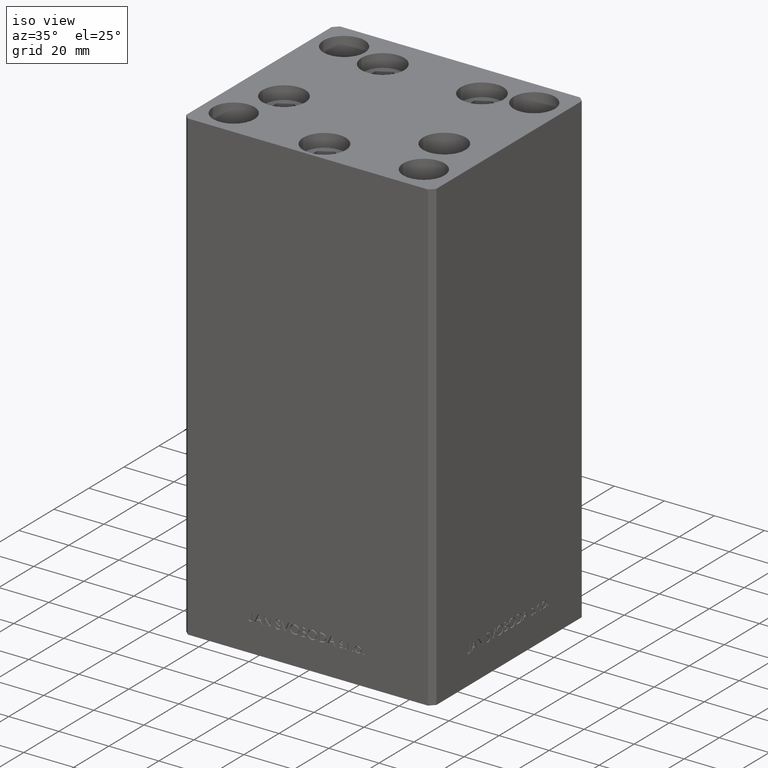
[diagram: clean part render]
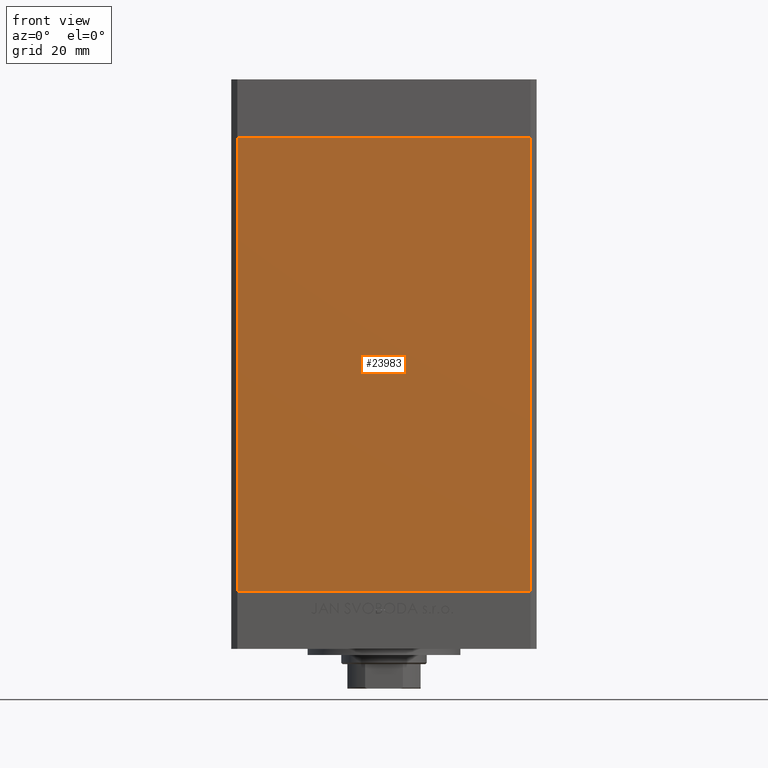
[diagram: tour spotlight — one face highlighted and labeled with its STEP entity id]
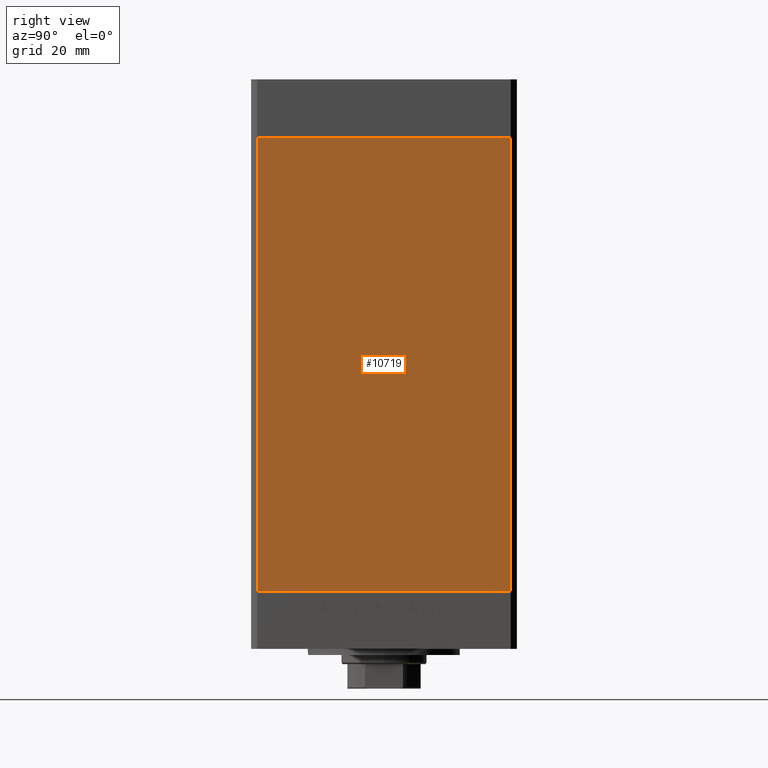
[diagram: tour spotlight — one face highlighted and labeled with its STEP entity id]
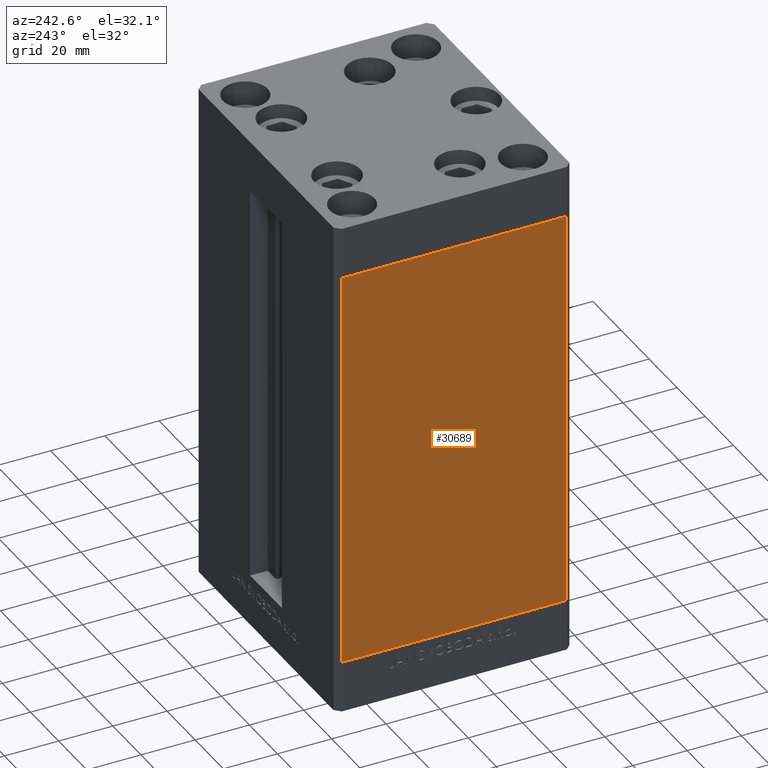
[diagram: tour spotlight — one face highlighted and labeled with its STEP entity id]
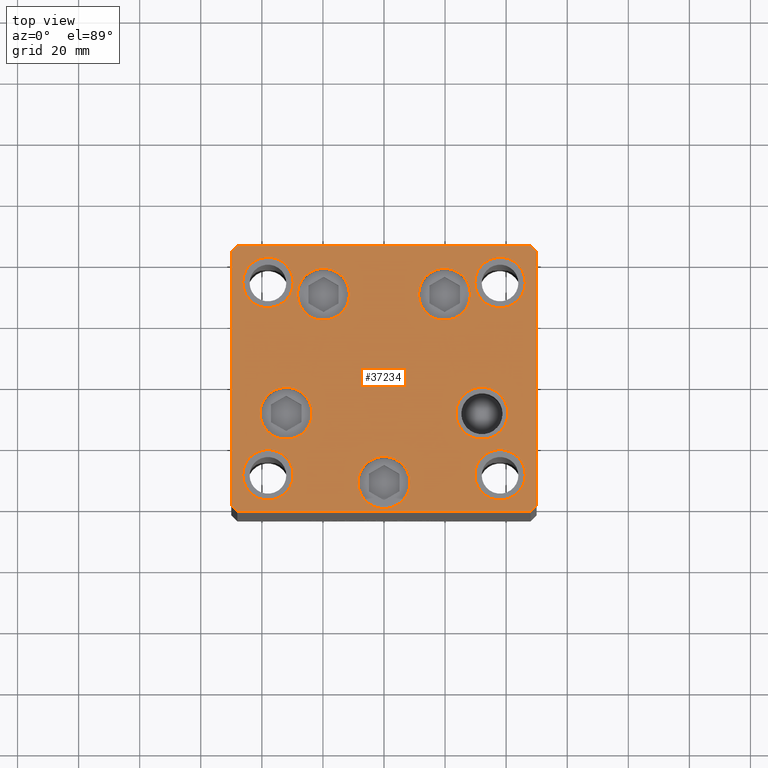
[diagram: tour spotlight — one face highlighted and labeled with its STEP entity id]
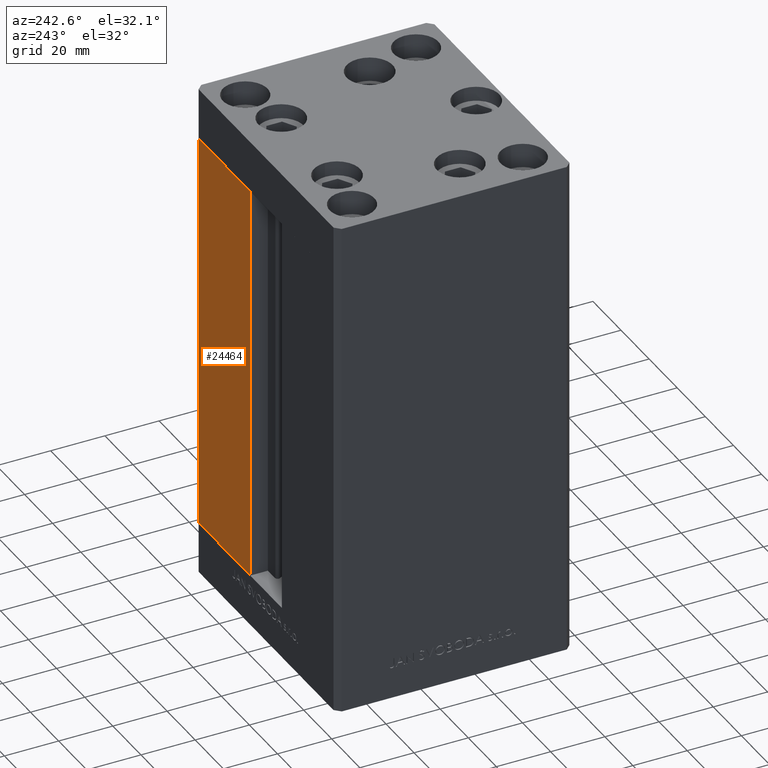
[diagram: tour spotlight — one face highlighted and labeled with its STEP entity id]
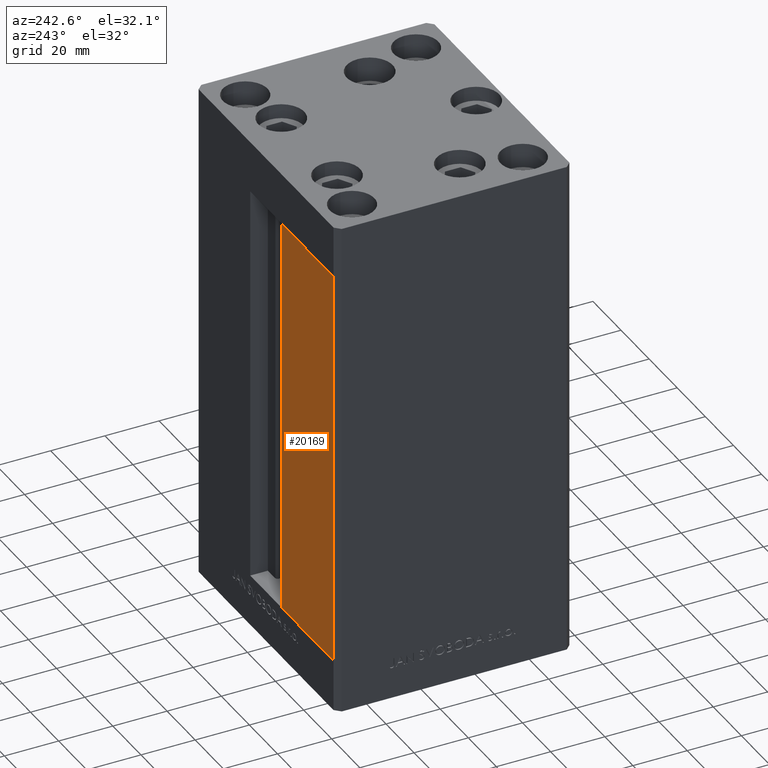
[diagram: tour spotlight — one face highlighted and labeled with its STEP entity id]
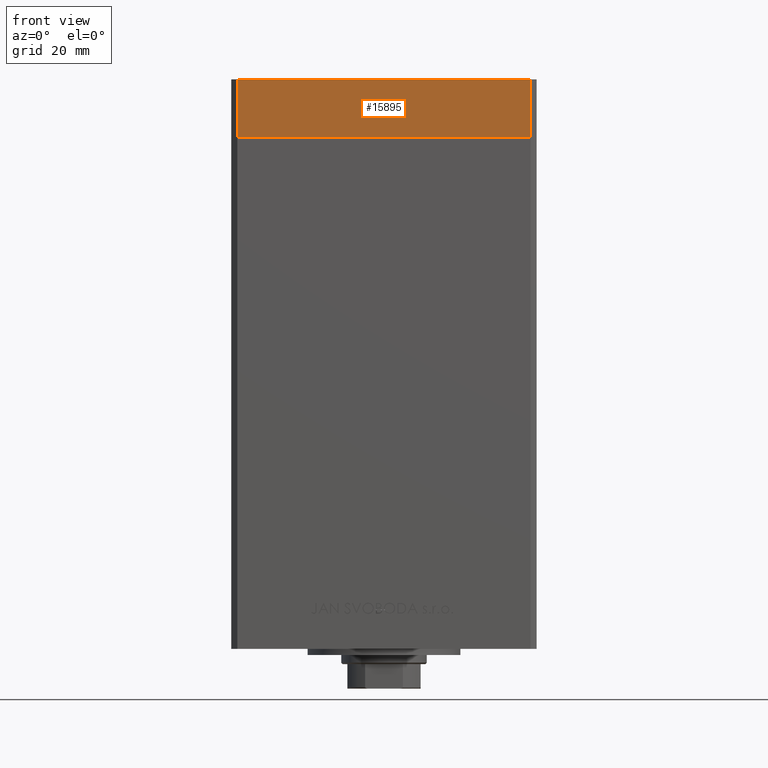
[diagram: tour spotlight — one face highlighted and labeled with its STEP entity id]
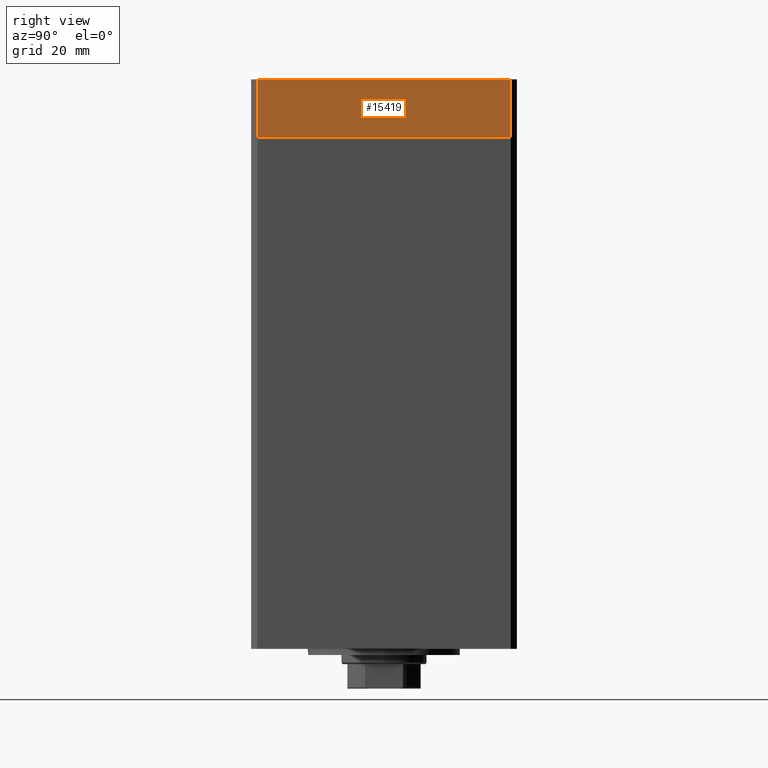
[diagram: tour spotlight — one face highlighted and labeled with its STEP entity id]
A machine part: a face-by-face anatomy tour. The part has 1160 B-rep faces; the first image is the clean iso view, then the 8 largest visible faces are spotlighted one at a time (largest first), each with its STEP entity span.

Face 1 — front view, entity #23983. In plain terms, the highlighted planar face has unit normal (0, 1, 0).
Definition (entity closure, byte-faithful):
#529 = ORIENTED_EDGE ( 'NONE', *, *, #44042, .T. ) ;
#829 = DIRECTION ( 'NONE',  ( -0.000000000000000000, -0.000000000000000000, -1.000000000000000000 ) ) ;
#3262 = VERTEX_POINT ( 'NONE', #30499 ) ;
#3427 = LINE ( 'NONE', #37718, #45842 ) ;
#4276 = VERTEX_POINT ( 'NONE', #11997 ) ;
#5129 = EDGE_CURVE ( 'NONE', #4276, #3262, #26925, .T. ) ;
#8267 = DIRECTION ( 'NONE',  ( 1.000000000000000000, 0.000000000000000000, 0.000000000000000000 ) ) ;
#8615 = VECTOR ( 'NONE', #46596, 1000.000000000000000 ) ;
#9064 = LINE ( 'NONE', #39380, #8615 ) ;
#11513 = ORIENTED_EDGE ( 'NONE', *, *, #42528, .F. ) ;
#11997 = CARTESIAN_POINT ( 'NONE',  ( -47.99999999999998579, -43.50000000000000000, 148.5000000000000000 ) ) ;
#15092 = DIRECTION ( 'NONE',  ( -0.000000000000000000, -0.000000000000000000, -1.000000000000000000 ) ) ;
#15114 = VERTEX_POINT ( 'NONE', #47984 ) ;
#23983 = ADVANCED_FACE ( 'NONE', ( #25010 ), #47390, .F. ) ;
#24705 = ORIENTED_EDGE ( 'NONE', *, *, #5129, .T. ) ;
#25010 = FACE_OUTER_BOUND ( 'NONE', #35480, .T. ) ;
#26925 = LINE ( 'NONE', #34884, #41299 ) ;
#28021 = CARTESIAN_POINT ( 'NONE',  ( -47.99999999999998579, -43.50000000000000000, 148.5000000000000000 ) ) ;
#29408 = AXIS2_PLACEMENT_3D ( 'NONE', #28021, #39684, #43904 ) ;
#30499 = CARTESIAN_POINT ( 'NONE',  ( -47.99999999999998579, -43.50000000000000000, 0.000000000000000000 ) ) ;
#31258 = CARTESIAN_POINT ( 'NONE',  ( 47.99999999999998579, -43.50000000000000000, 148.5000000000000000 ) ) ;
#34393 = VERTEX_POINT ( 'NONE', #31258 ) ;
#34884 = CARTESIAN_POINT ( 'NONE',  ( -47.99999999999998579, -43.50000000000000000, 148.5000000000000000 ) ) ;
#35480 = EDGE_LOOP ( 'NONE', ( #529, #11513, #44201, #24705 ) ) ;
#37718 = CARTESIAN_POINT ( 'NONE',  ( 47.99999999999998579, -43.50000000000000000, 148.5000000000000000 ) ) ;
#38350 = LINE ( 'NONE', #42312, #49179 ) ;
#39380 = CARTESIAN_POINT ( 'NONE',  ( -47.99999999999998579, -43.50000000000000000, 0.000000000000000000 ) ) ;
#39684 = DIRECTION ( 'NONE',  ( 0.000000000000000000, 1.000000000000000000, 0.000000000000000000 ) ) ;
#41299 = VECTOR ( 'NONE', #829, 1000.000000000000000 ) ;
#42312 = CARTESIAN_POINT ( 'NONE',  ( -47.99999999999998579, -43.50000000000000000, 148.5000000000000000 ) ) ;
#42528 = EDGE_CURVE ( 'NONE', #34393, #15114, #3427, .T. ) ;
#43904 = DIRECTION ( 'NONE',  ( 0.000000000000000000, -0.000000000000000000, 1.000000000000000000 ) ) ;
#44042 = EDGE_CURVE ( 'NONE', #3262, #15114, #9064, .T. ) ;
#44201 = ORIENTED_EDGE ( 'NONE', *, *, #46123, .F. ) ;
#45842 = VECTOR ( 'NONE', #15092, 1000.000000000000000 ) ;
#46123 = EDGE_CURVE ( 'NONE', #4276, #34393, #38350, .T. ) ;
#46596 = DIRECTION ( 'NONE',  ( 1.000000000000000000, 0.000000000000000000, 0.000000000000000000 ) ) ;
#47390 = PLANE ( 'NONE',  #29408 ) ;
#47984 = CARTESIAN_POINT ( 'NONE',  ( 47.99999999999998579, -43.50000000000000000, 0.000000000000000000 ) ) ;
#49179 = VECTOR ( 'NONE', #8267, 1000.000000000000000 ) ;

Face 2 — right view, entity #10719. In plain terms, the highlighted planar face has unit normal (1, -0, 0).
Definition (entity closure, byte-faithful):
#2509 = CARTESIAN_POINT ( 'NONE',  ( 49.99999999999998579, -41.49999999999999289, 0.000000000000000000 ) ) ;
#3265 = VECTOR ( 'NONE', #44586, 1000.000000000000000 ) ;
#4296 = DIRECTION ( 'NONE',  ( 1.000000000000000000, -3.344045254895050480E-16, 0.000000000000000000 ) ) ;
#7478 = CARTESIAN_POINT ( 'NONE',  ( 49.99999999999998579, -41.49999999999999289, 148.5000000000000000 ) ) ;
#8017 = PLANE ( 'NONE',  #16928 ) ;
#8081 = EDGE_LOOP ( 'NONE', ( #22145, #39092, #16872, #41247 ) ) ;
#10155 = EDGE_CURVE ( 'NONE', #41208, #15154, #14594, .T. ) ;
#10324 = CARTESIAN_POINT ( 'NONE',  ( 50.00000000000001421, 41.49999999999999289, 148.5000000000000000 ) ) ;
#10719 = ADVANCED_FACE ( 'NONE', ( #11739 ), #8017, .T. ) ;
#11739 = FACE_OUTER_BOUND ( 'NONE', #8081, .T. ) ;
#11990 = DIRECTION ( 'NONE',  ( 3.344045254895050480E-16, 1.000000000000000000, 0.000000000000000000 ) ) ;
#12248 = CARTESIAN_POINT ( 'NONE',  ( 49.99999999999998579, -41.49999999999999289, 148.5000000000000000 ) ) ;
#14594 = LINE ( 'NONE', #18092, #29578 ) ;
#15154 = VERTEX_POINT ( 'NONE', #2509 ) ;
#16872 = ORIENTED_EDGE ( 'NONE', *, *, #33438, .T. ) ;
#16928 = AXIS2_PLACEMENT_3D ( 'NONE', #38349, #4296, #11990 ) ;
#17042 = EDGE_CURVE ( 'NONE', #18996, #15154, #32129, .T. ) ;
#18092 = CARTESIAN_POINT ( 'NONE',  ( 50.00000000000001421, 41.49999999999999289, 0.000000000000000000 ) ) ;
#18996 = VERTEX_POINT ( 'NONE', #7478 ) ;
#22145 = ORIENTED_EDGE ( 'NONE', *, *, #10155, .F. ) ;
#23634 = VECTOR ( 'NONE', #35859, 1000.000000000000000 ) ;
#25227 = EDGE_CURVE ( 'NONE', #45515, #41208, #41085, .T. ) ;
#26435 = CARTESIAN_POINT ( 'NONE',  ( 50.00000000000001421, 41.49999999999999289, 148.5000000000000000 ) ) ;
#29229 = CARTESIAN_POINT ( 'NONE',  ( 50.00000000000001421, 41.49999999999999289, 0.000000000000000000 ) ) ;
#29578 = VECTOR ( 'NONE', #48407, 1000.000000000000000 ) ;
#32129 = LINE ( 'NONE', #12248, #23634 ) ;
#33320 = LINE ( 'NONE', #41241, #43847 ) ;
#33438 = EDGE_CURVE ( 'NONE', #45515, #18996, #33320, .T. ) ;
#35859 = DIRECTION ( 'NONE',  ( -0.000000000000000000, -0.000000000000000000, -1.000000000000000000 ) ) ;
#37534 = DIRECTION ( 'NONE',  ( -3.344045254895050973E-16, -1.000000000000000000, 0.000000000000000000 ) ) ;
#38349 = CARTESIAN_POINT ( 'NONE',  ( 50.00000000000001421, 41.49999999999999289, 148.5000000000000000 ) ) ;
#39092 = ORIENTED_EDGE ( 'NONE', *, *, #25227, .F. ) ;
#41085 = LINE ( 'NONE', #26435, #3265 ) ;
#41208 = VERTEX_POINT ( 'NONE', #29229 ) ;
#41241 = CARTESIAN_POINT ( 'NONE',  ( 50.00000000000001421, 41.49999999999999289, 148.5000000000000000 ) ) ;
#41247 = ORIENTED_EDGE ( 'NONE', *, *, #17042, .T. ) ;
#43847 = VECTOR ( 'NONE', #37534, 1000.000000000000000 ) ;
#44586 = DIRECTION ( 'NONE',  ( -0.000000000000000000, -0.000000000000000000, -1.000000000000000000 ) ) ;
#45515 = VERTEX_POINT ( 'NONE', #10324 ) ;
#48407 = DIRECTION ( 'NONE',  ( -3.344045254895050973E-16, -1.000000000000000000, 0.000000000000000000 ) ) ;

Face 3 — auxiliary view, entity #30689. In plain terms, the highlighted planar face has unit normal (1, 0, 0).
Definition (entity closure, byte-faithful):
#479 = VERTEX_POINT ( 'NONE', #11468 ) ;
#728 = CARTESIAN_POINT ( 'NONE',  ( -50.00000000000001421, 41.49999999999999289, 148.5000000000000000 ) ) ;
#1010 = CARTESIAN_POINT ( 'NONE',  ( -49.99999999999998579, -41.49999999999999289, 148.5000000000000000 ) ) ;
#1579 = ORIENTED_EDGE ( 'NONE', *, *, #39541, .T. ) ;
#5050 = ORIENTED_EDGE ( 'NONE', *, *, #20758, .F. ) ;
#5432 = EDGE_CURVE ( 'NONE', #48952, #35079, #42010, .T. ) ;
#6164 = EDGE_CURVE ( 'NONE', #479, #35079, #37069, .T. ) ;
#7438 = LINE ( 'NONE', #18140, #22958 ) ;
#7970 = DIRECTION ( 'NONE',  ( -0.000000000000000000, -0.000000000000000000, -1.000000000000000000 ) ) ;
#9146 = VECTOR ( 'NONE', #24322, 1000.000000000000000 ) ;
#9163 = CARTESIAN_POINT ( 'NONE',  ( -50.00000000000001421, 41.49999999999999289, 148.5000000000000000 ) ) ;
#11468 = CARTESIAN_POINT ( 'NONE',  ( -50.00000000000001421, 41.49999999999999289, 0.000000000000000000 ) ) ;
#18140 = CARTESIAN_POINT ( 'NONE',  ( -50.00000000000001421, 41.49999999999999289, 148.5000000000000000 ) ) ;
#20758 = EDGE_CURVE ( 'NONE', #21473, #48952, #7438, .T. ) ;
#21473 = VERTEX_POINT ( 'NONE', #728 ) ;
#22958 = VECTOR ( 'NONE', #48456, 1000.000000000000000 ) ;
#23868 = CARTESIAN_POINT ( 'NONE',  ( -49.99999999999998579, -41.49999999999999289, 148.5000000000000000 ) ) ;
#24322 = DIRECTION ( 'NONE',  ( -0.000000000000000000, -0.000000000000000000, -1.000000000000000000 ) ) ;
#25445 = VECTOR ( 'NONE', #7970, 1000.000000000000000 ) ;
#30498 = EDGE_LOOP ( 'NONE', ( #45951, #34334, #5050, #1579 ) ) ;
#30689 = ADVANCED_FACE ( 'NONE', ( #42285 ), #43689, .F. ) ;
#30764 = CARTESIAN_POINT ( 'NONE',  ( -49.99999999999998579, -41.49999999999999289, 0.000000000000000000 ) ) ;
#31778 = DIRECTION ( 'NONE',  ( 1.000000000000000000, 3.344045254895050480E-16, -0.000000000000000000 ) ) ;
#34334 = ORIENTED_EDGE ( 'NONE', *, *, #5432, .F. ) ;
#35059 = AXIS2_PLACEMENT_3D ( 'NONE', #42031, #31778, #39713 ) ;
#35079 = VERTEX_POINT ( 'NONE', #30764 ) ;
#37069 = LINE ( 'NONE', #37318, #42165 ) ;
#37318 = CARTESIAN_POINT ( 'NONE',  ( -50.00000000000001421, 41.49999999999999289, 0.000000000000000000 ) ) ;
#39541 = EDGE_CURVE ( 'NONE', #21473, #479, #43215, .T. ) ;
#39713 = DIRECTION ( 'NONE',  ( -3.344045254895050480E-16, 1.000000000000000000, 0.000000000000000000 ) ) ;
#41526 = DIRECTION ( 'NONE',  ( 3.344045254895050973E-16, -1.000000000000000000, 0.000000000000000000 ) ) ;
#42010 = LINE ( 'NONE', #23868, #25445 ) ;
#42031 = CARTESIAN_POINT ( 'NONE',  ( -50.00000000000001421, 41.49999999999999289, 148.5000000000000000 ) ) ;
#42165 = VECTOR ( 'NONE', #41526, 1000.000000000000000 ) ;
#42285 = FACE_OUTER_BOUND ( 'NONE', #30498, .T. ) ;
#43215 = LINE ( 'NONE', #9163, #9146 ) ;
#43689 = PLANE ( 'NONE',  #35059 ) ;
#45951 = ORIENTED_EDGE ( 'NONE', *, *, #6164, .T. ) ;
#48456 = DIRECTION ( 'NONE',  ( 3.344045254895050973E-16, -1.000000000000000000, 0.000000000000000000 ) ) ;
#48952 = VERTEX_POINT ( 'NONE', #1010 ) ;

Face 4 — top view, entity #37234. In plain terms, the highlighted planar face has unit normal (0, 0, 1).
Definition (entity closure, byte-faithful):
#8 = VERTEX_POINT ( 'NONE', #1627 ) ;
#145 = VERTEX_POINT ( 'NONE', #6319 ) ;
#338 = DIRECTION ( 'NONE',  ( 0.7071067811865474617, -0.7071067811865474617, 0.000000000000000000 ) ) ;
#450 = VERTEX_POINT ( 'NONE', #2787 ) ;
#486 = DIRECTION ( 'NONE',  ( 0.000000000000000000, 0.000000000000000000, 1.000000000000000000 ) ) ;
#1210 = CARTESIAN_POINT ( 'NONE',  ( -46.24999999999999289, -31.50000000000000000, 0.000000000000000000 ) ) ;
#1566 = AXIS2_PLACEMENT_3D ( 'NONE', #42234, #8185, #23348 ) ;
#1627 = CARTESIAN_POINT ( 'NONE',  ( -47.99999999999999289, -43.50000000000001421, 0.000000000000000000 ) ) ;
#1640 = VERTEX_POINT ( 'NONE', #40011 ) ;
#2377 = DIRECTION ( 'NONE',  ( 0.000000000000000000, -0.000000000000000000, -1.000000000000000000 ) ) ;
#2577 = CIRCLE ( 'NONE', #27986, 8.250000000000000000 ) ;
#2624 = CARTESIAN_POINT ( 'NONE',  ( 28.32068048781373193, 27.62500000000000000, 0.000000000000000000 ) ) ;
#2760 = CIRCLE ( 'NONE', #30559, 8.250000000000000000 ) ;
#2786 = EDGE_CURVE ( 'NONE', #32083, #30804, #31751, .T. ) ;
#2787 = CARTESIAN_POINT ( 'NONE',  ( -8.499999999999996447, -34.00000000000000000, 0.000000000000000000 ) ) ;
#3272 = EDGE_CURVE ( 'NONE', #30804, #32083, #5560, .T. ) ;
#3275 = FACE_OUTER_BOUND ( 'NONE', #21877, .T. ) ;
#3373 = DIRECTION ( 'NONE',  ( -1.003213576468515193E-15, 1.000000000000000000, 0.000000000000000000 ) ) ;
#3391 = VERTEX_POINT ( 'NONE', #5125 ) ;
#3745 = DIRECTION ( 'NONE',  ( 1.000000000000000000, 0.000000000000000000, 0.000000000000000000 ) ) ;
#3929 = LINE ( 'NONE', #31031, #35561 ) ;
#4224 = DIRECTION ( 'NONE',  ( 1.000000000000000000, 0.000000000000000000, 0.000000000000000000 ) ) ;
#4298 = EDGE_LOOP ( 'NONE', ( #34766, #44834 ) ) ;
#4312 = CARTESIAN_POINT ( 'NONE',  ( 40.55550741379014568, -11.33333333333332860, 0.000000000000000000 ) ) ;
#4351 = DIRECTION ( 'NONE',  ( 1.000000000000000000, 0.000000000000000000, 0.000000000000000000 ) ) ;
#4472 = CARTESIAN_POINT ( 'NONE',  ( -19.82068048781373903, 27.62499999999999645, 0.000000000000000000 ) ) ;
#4690 = VERTEX_POINT ( 'NONE', #24232 ) ;
#4743 = VERTEX_POINT ( 'NONE', #44333 ) ;
#5125 = CARTESIAN_POINT ( 'NONE',  ( 29.74999999999999645, 31.49999999999999289, 0.000000000000000000 ) ) ;
#5158 = VERTEX_POINT ( 'NONE', #35615 ) ;
#5167 = ORIENTED_EDGE ( 'NONE', *, *, #26326, .F. ) ;
#5489 = ORIENTED_EDGE ( 'NONE', *, *, #17171, .T. ) ;
#5560 = CIRCLE ( 'NONE', #48405, 8.500000000000000000 ) ;
#6319 = CARTESIAN_POINT ( 'NONE',  ( -23.55550741379015278, -11.33333333333333748, 0.000000000000000000 ) ) ;
#6410 = AXIS2_PLACEMENT_3D ( 'NONE', #17329, #25017, #40172 ) ;
#6587 = CARTESIAN_POINT ( 'NONE',  ( 4.163799117101000559E-15, -34.00000000000000000, 0.000000000000000000 ) ) ;
#6607 = LINE ( 'NONE', #37420, #34713 ) ;
#6701 = EDGE_LOOP ( 'NONE', ( #35864, #39009 ) ) ;
#6709 = EDGE_LOOP ( 'NONE', ( #14121, #23267 ) ) ;
#6915 = EDGE_LOOP ( 'NONE', ( #27298, #7660 ) ) ;
#7266 = LINE ( 'NONE', #25412, #12699 ) ;
#7456 = EDGE_CURVE ( 'NONE', #26067, #15928, #44576, .T. ) ;
#7489 = DIRECTION ( 'NONE',  ( 1.000000000000000000, 0.000000000000000000, 0.000000000000000000 ) ) ;
#7546 = EDGE_CURVE ( 'NONE', #450, #11930, #35876, .T. ) ;
#7660 = ORIENTED_EDGE ( 'NONE', *, *, #45718, .T. ) ;
#7954 = DIRECTION ( 'NONE',  ( 0.000000000000000000, -0.000000000000000000, -1.000000000000000000 ) ) ;
#8185 = DIRECTION ( 'NONE',  ( 0.000000000000000000, 0.000000000000000000, 1.000000000000000000 ) ) ;
#8314 = EDGE_CURVE ( 'NONE', #4743, #35804, #40149, .T. ) ;
#8399 = ORIENTED_EDGE ( 'NONE', *, *, #21555, .F. ) ;
#8593 = DIRECTION ( 'NONE',  ( 1.000000000000000000, 0.000000000000000000, 0.000000000000000000 ) ) ;
#8839 = CIRCLE ( 'NONE', #18389, 8.250000000000000000 ) ;
#8923 = CIRCLE ( 'NONE', #31166, 8.250000000000000000 ) ;
#9003 = ORIENTED_EDGE ( 'NONE', *, *, #39188, .F. ) ;
#9389 = CARTESIAN_POINT ( 'NONE',  ( -29.75000000000000000, 31.50000000000000000, 0.000000000000000000 ) ) ;
#9520 = VERTEX_POINT ( 'NONE', #13787 ) ;
#9746 = EDGE_LOOP ( 'NONE', ( #9003, #20054 ) ) ;
#9833 = DIRECTION ( 'NONE',  ( 1.000000000000000000, 0.000000000000000000, 0.000000000000000000 ) ) ;
#10019 = EDGE_CURVE ( 'NONE', #39122, #3391, #2577, .T. ) ;
#10080 = EDGE_CURVE ( 'NONE', #3391, #39122, #8923, .T. ) ;
#10206 = AXIS2_PLACEMENT_3D ( 'NONE', #27221, #26963, #4351 ) ;
#10233 = FACE_BOUND ( 'NONE', #6915, .T. ) ;
#10782 = CARTESIAN_POINT ( 'NONE',  ( -40.55550741379015278, -11.33333333333333925, 0.000000000000000000 ) ) ;
#10793 = CARTESIAN_POINT ( 'NONE',  ( 38.00000000000000000, -31.49999999999999289, 0.000000000000000000 ) ) ;
#10799 = EDGE_CURVE ( 'NONE', #25642, #11814, #47025, .T. ) ;
#10979 = EDGE_CURVE ( 'NONE', #5158, #47782, #31196, .T. ) ;
#11467 = DIRECTION ( 'NONE',  ( -0.000000000000000000, 0.000000000000000000, 1.000000000000000000 ) ) ;
#11679 = DIRECTION ( 'NONE',  ( 1.000000000000000000, 0.000000000000000000, 0.000000000000000000 ) ) ;
#11778 = AXIS2_PLACEMENT_3D ( 'NONE', #26558, #15375, #15615 ) ;
#11814 = VERTEX_POINT ( 'NONE', #19170 ) ;
#11829 = DIRECTION ( 'NONE',  ( 0.000000000000000000, 0.000000000000000000, 1.000000000000000000 ) ) ;
#11930 = VERTEX_POINT ( 'NONE', #23863 ) ;
#12276 = EDGE_CURVE ( 'NONE', #11814, #4743, #48653, .T. ) ;
#12357 = DIRECTION ( 'NONE',  ( 0.000000000000000000, 0.000000000000000000, 1.000000000000000000 ) ) ;
#12699 = VECTOR ( 'NONE', #48278, 1000.000000000000000 ) ;
#12735 = EDGE_LOOP ( 'NONE', ( #8399, #30956 ) ) ;
#12910 = DIRECTION ( 'NONE',  ( 1.000000000000000000, 0.000000000000000000, 0.000000000000000000 ) ) ;
#13053 = FACE_BOUND ( 'NONE', #30286, .T. ) ;
#13204 = DIRECTION ( 'NONE',  ( -0.7071067811865474617, 0.7071067811865474617, 0.000000000000000000 ) ) ;
#13393 = ORIENTED_EDGE ( 'NONE', *, *, #18603, .T. ) ;
#13521 = DIRECTION ( 'NONE',  ( 0.000000000000000000, 0.000000000000000000, 1.000000000000000000 ) ) ;
#13787 = CARTESIAN_POINT ( 'NONE',  ( 23.55550741379015633, -11.33333333333333037, 0.000000000000000000 ) ) ;
#13860 = VECTOR ( 'NONE', #22789, 1000.000000000000000 ) ;
#14121 = ORIENTED_EDGE ( 'NONE', *, *, #10019, .F. ) ;
#14221 = CARTESIAN_POINT ( 'NONE',  ( 38.00000000000000000, -31.49999999999999289, 0.000000000000000000 ) ) ;
#15172 = ORIENTED_EDGE ( 'NONE', *, *, #24760, .T. ) ;
#15327 = DIRECTION ( 'NONE',  ( 0.000000000000000000, -0.000000000000000000, -1.000000000000000000 ) ) ;
#15335 = ORIENTED_EDGE ( 'NONE', *, *, #43330, .T. ) ;
#15375 = DIRECTION ( 'NONE',  ( 0.000000000000000000, -0.000000000000000000, -1.000000000000000000 ) ) ;
#15615 = DIRECTION ( 'NONE',  ( 1.000000000000000000, 0.000000000000000000, 0.000000000000000000 ) ) ;
#15848 = DIRECTION ( 'NONE',  ( 1.000000000000000000, 0.000000000000000000, 0.000000000000000000 ) ) ;
#15928 = VERTEX_POINT ( 'NONE', #29213 ) ;
#16179 = EDGE_CURVE ( 'NONE', #44316, #9520, #40260, .T. ) ;
#16295 = CARTESIAN_POINT ( 'NONE',  ( 47.99999999999999289, -43.50000000000001421, 0.000000000000000000 ) ) ;
#16324 = ORIENTED_EDGE ( 'NONE', *, *, #22357, .T. ) ;
#16644 = LINE ( 'NONE', #47208, #32402 ) ;
#16662 = EDGE_CURVE ( 'NONE', #20990, #25642, #6607, .T. ) ;
#17171 = EDGE_CURVE ( 'NONE', #17412, #20990, #3929, .T. ) ;
#17329 = CARTESIAN_POINT ( 'NONE',  ( -19.82068048781373903, 27.62499999999999645, 0.000000000000000000 ) ) ;
#17412 = VERTEX_POINT ( 'NONE', #16295 ) ;
#18389 = AXIS2_PLACEMENT_3D ( 'NONE', #19797, #11829, #8593 ) ;
#18448 = PLANE ( 'NONE',  #42422 ) ;
#18603 = EDGE_CURVE ( 'NONE', #48056, #8, #19246, .T. ) ;
#18672 = CARTESIAN_POINT ( 'NONE',  ( -50.00000000000000000, -41.50000000000000000, 0.000000000000000000 ) ) ;
#19170 = CARTESIAN_POINT ( 'NONE',  ( 47.99999999999990763, 43.50000000000000000, 0.000000000000000000 ) ) ;
#19246 = LINE ( 'NONE', #26175, #47480 ) ;
#19266 = EDGE_CURVE ( 'NONE', #30364, #145, #30847, .T. ) ;
#19308 = EDGE_CURVE ( 'NONE', #9520, #44316, #45123, .T. ) ;
#19644 = DIRECTION ( 'NONE',  ( 1.000000000000000000, 0.000000000000000000, 0.000000000000000000 ) ) ;
#19797 = CARTESIAN_POINT ( 'NONE',  ( -37.99999999999999289, -31.50000000000000000, 0.000000000000000000 ) ) ;
#19880 = CARTESIAN_POINT ( 'NONE',  ( 38.00000000000000000, 31.49999999999999289, 0.000000000000000000 ) ) ;
#20054 = ORIENTED_EDGE ( 'NONE', *, *, #7456, .F. ) ;
#20263 = AXIS2_PLACEMENT_3D ( 'NONE', #46413, #12357, #15848 ) ;
#20401 = ORIENTED_EDGE ( 'NONE', *, *, #8314, .T. ) ;
#20775 = FACE_BOUND ( 'NONE', #4298, .T. ) ;
#20834 = VECTOR ( 'NONE', #42909, 1000.000000000000000 ) ;
#20851 = ORIENTED_EDGE ( 'NONE', *, *, #48960, .T. ) ;
#20990 = VERTEX_POINT ( 'NONE', #33005 ) ;
#21200 = DIRECTION ( 'NONE',  ( 0.000000000000000000, -0.000000000000000000, -1.000000000000000000 ) ) ;
#21293 = CIRCLE ( 'NONE', #48274, 8.250000000000000000 ) ;
#21499 = VERTEX_POINT ( 'NONE', #1210 ) ;
#21555 = EDGE_CURVE ( 'NONE', #30667, #4690, #46796, .T. ) ;
#21853 = CIRCLE ( 'NONE', #20263, 8.250000000000000000 ) ;
#21877 = EDGE_LOOP ( 'NONE', ( #13393, #15335, #5489, #41038, #37417, #43186, #20401, #16324 ) ) ;
#21936 = CARTESIAN_POINT ( 'NONE',  ( 46.25000000000000000, 31.49999999999999289, 0.000000000000000000 ) ) ;
#22167 = FACE_BOUND ( 'NONE', #6709, .T. ) ;
#22357 = EDGE_CURVE ( 'NONE', #35804, #48056, #7266, .T. ) ;
#22789 = DIRECTION ( 'NONE',  ( -1.000000000000000000, -3.614007241618350743E-16, 0.000000000000000000 ) ) ;
#22914 = DIRECTION ( 'NONE',  ( 0.000000000000000000, 0.000000000000000000, 1.000000000000000000 ) ) ;
#23267 = ORIENTED_EDGE ( 'NONE', *, *, #10080, .F. ) ;
#23348 = DIRECTION ( 'NONE',  ( 1.000000000000000000, 0.000000000000000000, 0.000000000000000000 ) ) ;
#23863 = CARTESIAN_POINT ( 'NONE',  ( 8.500000000000003553, -34.00000000000000000, 0.000000000000000000 ) ) ;
#24232 = CARTESIAN_POINT ( 'NONE',  ( -46.25000000000000000, 31.50000000000000000, 0.000000000000000000 ) ) ;
#24515 = CIRCLE ( 'NONE', #10206, 8.500000000000000000 ) ;
#24602 = CARTESIAN_POINT ( 'NONE',  ( 49.99999999999992184, 41.49999999999998579, 0.000000000000000000 ) ) ;
#24760 = EDGE_CURVE ( 'NONE', #47782, #5158, #30237, .T. ) ;
#25017 = DIRECTION ( 'NONE',  ( 0.000000000000000000, -0.000000000000000000, -1.000000000000000000 ) ) ;
#25189 = DIRECTION ( 'NONE',  ( 1.000000000000000000, 0.000000000000000000, 0.000000000000000000 ) ) ;
#25399 = CARTESIAN_POINT ( 'NONE',  ( 19.82068048781373193, 27.62500000000000000, 0.000000000000000000 ) ) ;
#25412 = CARTESIAN_POINT ( 'NONE',  ( -50.00000000000000711, 41.49999999999995026, 0.000000000000000000 ) ) ;
#25642 = VERTEX_POINT ( 'NONE', #24602 ) ;
#25876 = FACE_BOUND ( 'NONE', #41560, .T. ) ;
#26067 = VERTEX_POINT ( 'NONE', #27155 ) ;
#26154 = AXIS2_PLACEMENT_3D ( 'NONE', #25399, #21200, #32880 ) ;
#26175 = CARTESIAN_POINT ( 'NONE',  ( -50.00000000000000000, -41.50000000000000000, 0.000000000000000000 ) ) ;
#26202 = AXIS2_PLACEMENT_3D ( 'NONE', #34821, #46255, #3745 ) ;
#26326 = EDGE_CURVE ( 'NONE', #21499, #1640, #8839, .T. ) ;
#26507 = ORIENTED_EDGE ( 'NONE', *, *, #7546, .T. ) ;
#26558 = CARTESIAN_POINT ( 'NONE',  ( 32.05550741379015278, -11.33333333333333037, 0.000000000000000000 ) ) ;
#26837 = CARTESIAN_POINT ( 'NONE',  ( 32.05550741379015278, -11.33333333333333037, 0.000000000000000000 ) ) ;
#26963 = DIRECTION ( 'NONE',  ( 0.000000000000000000, -0.000000000000000000, -1.000000000000000000 ) ) ;
#27155 = CARTESIAN_POINT ( 'NONE',  ( 29.74999999999999645, -31.49999999999999289, 0.000000000000000000 ) ) ;
#27221 = CARTESIAN_POINT ( 'NONE',  ( -32.05550741379015278, -11.33333333333333925, 0.000000000000000000 ) ) ;
#27298 = ORIENTED_EDGE ( 'NONE', *, *, #19266, .T. ) ;
#27568 = AXIS2_PLACEMENT_3D ( 'NONE', #26837, #38758, #19644 ) ;
#27986 = AXIS2_PLACEMENT_3D ( 'NONE', #19880, #486, #4224 ) ;
#28064 = DIRECTION ( 'NONE',  ( 1.000000000000000000, 0.000000000000000000, 0.000000000000000000 ) ) ;
#28688 = AXIS2_PLACEMENT_3D ( 'NONE', #6587, #2377, #36911 ) ;
#29213 = CARTESIAN_POINT ( 'NONE',  ( 46.25000000000000000, -31.49999999999999289, 0.000000000000000000 ) ) ;
#30237 = CIRCLE ( 'NONE', #6410, 8.500000000000000000 ) ;
#30286 = EDGE_LOOP ( 'NONE', ( #15172, #39662 ) ) ;
#30364 = VERTEX_POINT ( 'NONE', #10782 ) ;
#30559 = AXIS2_PLACEMENT_3D ( 'NONE', #14221, #22914, #37585 ) ;
#30653 = CARTESIAN_POINT ( 'NONE',  ( -28.32068048781373903, 27.62499999999999645, 0.000000000000000000 ) ) ;
#30667 = VERTEX_POINT ( 'NONE', #9389 ) ;
#30804 = VERTEX_POINT ( 'NONE', #32998 ) ;
#30805 = ORIENTED_EDGE ( 'NONE', *, *, #44063, .F. ) ;
#30847 = CIRCLE ( 'NONE', #36408, 8.500000000000000000 ) ;
#30956 = ORIENTED_EDGE ( 'NONE', *, *, #40343, .F. ) ;
#31031 = CARTESIAN_POINT ( 'NONE',  ( 47.99999999999999289, -43.50000000000001421, 0.000000000000000000 ) ) ;
#31166 = AXIS2_PLACEMENT_3D ( 'NONE', #32531, #39730, #28064 ) ;
#31196 = CIRCLE ( 'NONE', #47847, 8.500000000000000000 ) ;
#31751 = CIRCLE ( 'NONE', #26154, 8.500000000000000000 ) ;
#32083 = VERTEX_POINT ( 'NONE', #2624 ) ;
#32402 = VECTOR ( 'NONE', #12910, 1000.000000000000000 ) ;
#32531 = CARTESIAN_POINT ( 'NONE',  ( 38.00000000000000000, 31.49999999999999289, 0.000000000000000000 ) ) ;
#32880 = DIRECTION ( 'NONE',  ( 1.000000000000000000, 0.000000000000000000, 0.000000000000000000 ) ) ;
#32998 = CARTESIAN_POINT ( 'NONE',  ( 11.32068048781373015, 27.62500000000000000, 0.000000000000000000 ) ) ;
#33005 = CARTESIAN_POINT ( 'NONE',  ( 50.00000000000000000, -41.49999999999999289, 0.000000000000000000 ) ) ;
#33358 = FACE_BOUND ( 'NONE', #35189, .T. ) ;
#33603 = CARTESIAN_POINT ( 'NONE',  ( 0.000000000000000000, 0.000000000000000000, 0.000000000000000000 ) ) ;
#34264 = DIRECTION ( 'NONE',  ( 0.7071067811865463515, 0.7071067811865487940, 0.000000000000000000 ) ) ;
#34713 = VECTOR ( 'NONE', #3373, 1000.000000000000000 ) ;
#34766 = ORIENTED_EDGE ( 'NONE', *, *, #3272, .T. ) ;
#34821 = CARTESIAN_POINT ( 'NONE',  ( 4.163799117101000559E-15, -34.00000000000000000, 0.000000000000000000 ) ) ;
#35046 = AXIS2_PLACEMENT_3D ( 'NONE', #10793, #44609, #9833 ) ;
#35189 = EDGE_LOOP ( 'NONE', ( #26507, #20851 ) ) ;
#35561 = VECTOR ( 'NONE', #34264, 1000.000000000000000 ) ;
#35615 = CARTESIAN_POINT ( 'NONE',  ( -11.32068048781373726, 27.62499999999999645, 0.000000000000000000 ) ) ;
#35804 = VERTEX_POINT ( 'NONE', #49166 ) ;
#35864 = ORIENTED_EDGE ( 'NONE', *, *, #19308, .T. ) ;
#35876 = CIRCLE ( 'NONE', #28688, 8.500000000000000000 ) ;
#35938 = FACE_BOUND ( 'NONE', #6701, .T. ) ;
#36280 = CARTESIAN_POINT ( 'NONE',  ( -32.05550741379015278, -11.33333333333333925, 0.000000000000000000 ) ) ;
#36408 = AXIS2_PLACEMENT_3D ( 'NONE', #36280, #44710, #48189 ) ;
#36911 = DIRECTION ( 'NONE',  ( 1.000000000000000000, 0.000000000000000000, 0.000000000000000000 ) ) ;
#37234 = ADVANCED_FACE ( 'NONE', ( #13053, #20775, #35938, #33358, #10233, #44533, #25876, #41033, #22167, #3275 ), #18448, .T. ) ;
#37417 = ORIENTED_EDGE ( 'NONE', *, *, #10799, .T. ) ;
#37420 = CARTESIAN_POINT ( 'NONE',  ( 50.00000000000000000, -41.49999999999999289, 0.000000000000000000 ) ) ;
#37585 = DIRECTION ( 'NONE',  ( 1.000000000000000000, 0.000000000000000000, 0.000000000000000000 ) ) ;
#38444 = CARTESIAN_POINT ( 'NONE',  ( 19.82068048781373193, 27.62500000000000000, 0.000000000000000000 ) ) ;
#38758 = DIRECTION ( 'NONE',  ( 0.000000000000000000, -0.000000000000000000, -1.000000000000000000 ) ) ;
#39009 = ORIENTED_EDGE ( 'NONE', *, *, #16179, .T. ) ;
#39122 = VERTEX_POINT ( 'NONE', #21936 ) ;
#39188 = EDGE_CURVE ( 'NONE', #15928, #26067, #2760, .T. ) ;
#39662 = ORIENTED_EDGE ( 'NONE', *, *, #10979, .T. ) ;
#39730 = DIRECTION ( 'NONE',  ( 0.000000000000000000, 0.000000000000000000, 1.000000000000000000 ) ) ;
#40011 = CARTESIAN_POINT ( 'NONE',  ( -29.74999999999999289, -31.50000000000000000, 0.000000000000000000 ) ) ;
#40149 = LINE ( 'NONE', #46639, #20834 ) ;
#40172 = DIRECTION ( 'NONE',  ( 1.000000000000000000, 0.000000000000000000, 0.000000000000000000 ) ) ;
#40260 = CIRCLE ( 'NONE', #27568, 8.499999999999992895 ) ;
#40343 = EDGE_CURVE ( 'NONE', #4690, #30667, #21853, .T. ) ;
#40705 = VECTOR ( 'NONE', #13204, 1000.000000000000114 ) ;
#41033 = FACE_BOUND ( 'NONE', #12735, .T. ) ;
#41038 = ORIENTED_EDGE ( 'NONE', *, *, #16662, .T. ) ;
#41560 = EDGE_LOOP ( 'NONE', ( #30805, #5167 ) ) ;
#42234 = CARTESIAN_POINT ( 'NONE',  ( -38.00000000000000000, 31.50000000000000000, 0.000000000000000000 ) ) ;
#42422 = AXIS2_PLACEMENT_3D ( 'NONE', #33603, #11467, #7489 ) ;
#42909 = DIRECTION ( 'NONE',  ( -0.7071067811865463515, -0.7071067811865487940, 0.000000000000000000 ) ) ;
#43186 = ORIENTED_EDGE ( 'NONE', *, *, #12276, .T. ) ;
#43330 = EDGE_CURVE ( 'NONE', #8, #17412, #16644, .T. ) ;
#43850 = CARTESIAN_POINT ( 'NONE',  ( -37.99999999999999289, -31.50000000000000000, 0.000000000000000000 ) ) ;
#44063 = EDGE_CURVE ( 'NONE', #1640, #21499, #21293, .T. ) ;
#44316 = VERTEX_POINT ( 'NONE', #4312 ) ;
#44333 = CARTESIAN_POINT ( 'NONE',  ( -48.00000000000000711, 43.49999999999996447, 0.000000000000000000 ) ) ;
#44533 = FACE_BOUND ( 'NONE', #9746, .T. ) ;
#44576 = CIRCLE ( 'NONE', #35046, 8.250000000000000000 ) ;
#44609 = DIRECTION ( 'NONE',  ( 0.000000000000000000, 0.000000000000000000, 1.000000000000000000 ) ) ;
#44672 = CARTESIAN_POINT ( 'NONE',  ( 47.99999999999990763, 43.50000000000000000, 0.000000000000000000 ) ) ;
#44710 = DIRECTION ( 'NONE',  ( 0.000000000000000000, -0.000000000000000000, -1.000000000000000000 ) ) ;
#44834 = ORIENTED_EDGE ( 'NONE', *, *, #2786, .T. ) ;
#45123 = CIRCLE ( 'NONE', #11778, 8.499999999999992895 ) ;
#45718 = EDGE_CURVE ( 'NONE', #145, #30364, #24515, .T. ) ;
#46255 = DIRECTION ( 'NONE',  ( 0.000000000000000000, -0.000000000000000000, -1.000000000000000000 ) ) ;
#46413 = CARTESIAN_POINT ( 'NONE',  ( -38.00000000000000000, 31.50000000000000000, 0.000000000000000000 ) ) ;
#46639 = CARTESIAN_POINT ( 'NONE',  ( -48.00000000000000711, 43.49999999999996447, 0.000000000000000000 ) ) ;
#46796 = CIRCLE ( 'NONE', #1566, 8.250000000000000000 ) ;
#47025 = LINE ( 'NONE', #47272, #40705 ) ;
#47208 = CARTESIAN_POINT ( 'NONE',  ( -47.99999999999999289, -43.50000000000001421, 0.000000000000000000 ) ) ;
#47272 = CARTESIAN_POINT ( 'NONE',  ( 49.99999999999992184, 41.49999999999998579, 0.000000000000000000 ) ) ;
#47480 = VECTOR ( 'NONE', #338, 1000.000000000000114 ) ;
#47647 = CIRCLE ( 'NONE', #26202, 8.500000000000000000 ) ;
#47782 = VERTEX_POINT ( 'NONE', #30653 ) ;
#47847 = AXIS2_PLACEMENT_3D ( 'NONE', #4472, #7954, #11679 ) ;
#48056 = VERTEX_POINT ( 'NONE', #18672 ) ;
#48189 = DIRECTION ( 'NONE',  ( 1.000000000000000000, 0.000000000000000000, 0.000000000000000000 ) ) ;
#48274 = AXIS2_PLACEMENT_3D ( 'NONE', #43850, #13521, #25189 ) ;
#48278 = DIRECTION ( 'NONE',  ( 8.360113137237628665E-17, -1.000000000000000000, 0.000000000000000000 ) ) ;
#48405 = AXIS2_PLACEMENT_3D ( 'NONE', #38444, #15327, #49133 ) ;
#48653 = LINE ( 'NONE', #44672, #13860 ) ;
#48960 = EDGE_CURVE ( 'NONE', #11930, #450, #47647, .T. ) ;
#49133 = DIRECTION ( 'NONE',  ( 1.000000000000000000, 0.000000000000000000, 0.000000000000000000 ) ) ;
#49166 = CARTESIAN_POINT ( 'NONE',  ( -50.00000000000000711, 41.49999999999995026, 0.000000000000000000 ) ) ;

Face 5 — auxiliary view, entity #24464. In plain terms, the highlighted planar face has unit normal (0, -1, 0).
Definition (entity closure, byte-faithful):
#751 = EDGE_CURVE ( 'NONE', #16409, #23020, #46208, .T. ) ;
#1199 = DIRECTION ( 'NONE',  ( -0.000000000000000000, -0.000000000000000000, -1.000000000000000000 ) ) ;
#1417 = VECTOR ( 'NONE', #27901, 1000.000000000000000 ) ;
#4784 = EDGE_CURVE ( 'NONE', #19222, #16409, #10283, .T. ) ;
#7036 = VECTOR ( 'NONE', #1199, 1000.000000000000000 ) ;
#7447 = CARTESIAN_POINT ( 'NONE',  ( -11.24999999999999822, 43.50000000000000000, 0.000000000000000000 ) ) ;
#8785 = VECTOR ( 'NONE', #28209, 1000.000000000000000 ) ;
#9580 = AXIS2_PLACEMENT_3D ( 'NONE', #29548, #15366, #10881 ) ;
#10283 = LINE ( 'NONE', #25439, #8785 ) ;
#10686 = LINE ( 'NONE', #7447, #39103 ) ;
#10881 = DIRECTION ( 'NONE',  ( 0.000000000000000000, -0.000000000000000000, -1.000000000000000000 ) ) ;
#14345 = ORIENTED_EDGE ( 'NONE', *, *, #17039, .T. ) ;
#14374 = PLANE ( 'NONE',  #9580 ) ;
#15366 = DIRECTION ( 'NONE',  ( 0.000000000000000000, -1.000000000000000000, 0.000000000000000000 ) ) ;
#15505 = CARTESIAN_POINT ( 'NONE',  ( 11.24999999999999822, 43.50000000000000000, 0.000000000000000000 ) ) ;
#16409 = VERTEX_POINT ( 'NONE', #27287 ) ;
#17039 = EDGE_CURVE ( 'NONE', #30347, #19222, #35605, .T. ) ;
#19222 = VERTEX_POINT ( 'NONE', #48438 ) ;
#20694 = CARTESIAN_POINT ( 'NONE',  ( 11.24999999999999822, 43.50000000000000000, 0.000000000000000000 ) ) ;
#23020 = VERTEX_POINT ( 'NONE', #41612 ) ;
#24464 = ADVANCED_FACE ( 'NONE', ( #37492 ), #14374, .F. ) ;
#25439 = CARTESIAN_POINT ( 'NONE',  ( -11.24999999999999822, 43.50000000000000000, 148.5000000000000000 ) ) ;
#26583 = DIRECTION ( 'NONE',  ( -1.000000000000000000, 0.000000000000000000, 0.000000000000000000 ) ) ;
#26669 = ORIENTED_EDGE ( 'NONE', *, *, #32741, .T. ) ;
#27287 = CARTESIAN_POINT ( 'NONE',  ( 48.00000000000000711, 43.50000000000000000, 148.5000000000000000 ) ) ;
#27901 = DIRECTION ( 'NONE',  ( -0.000000000000000000, -0.000000000000000000, 1.000000000000000000 ) ) ;
#28209 = DIRECTION ( 'NONE',  ( 1.000000000000000000, 0.000000000000000000, 0.000000000000000000 ) ) ;
#29000 = ORIENTED_EDGE ( 'NONE', *, *, #4784, .T. ) ;
#29548 = CARTESIAN_POINT ( 'NONE',  ( -11.24999999999999822, 43.50000000000000000, 148.5000000000000000 ) ) ;
#30347 = VERTEX_POINT ( 'NONE', #15505 ) ;
#32741 = EDGE_CURVE ( 'NONE', #23020, #30347, #10686, .T. ) ;
#33327 = ORIENTED_EDGE ( 'NONE', *, *, #751, .T. ) ;
#35605 = LINE ( 'NONE', #20694, #1417 ) ;
#37492 = FACE_OUTER_BOUND ( 'NONE', #48019, .T. ) ;
#39103 = VECTOR ( 'NONE', #26583, 1000.000000000000000 ) ;
#41612 = CARTESIAN_POINT ( 'NONE',  ( 48.00000000000000711, 43.50000000000000000, 0.000000000000000000 ) ) ;
#45710 = CARTESIAN_POINT ( 'NONE',  ( 48.00000000000000711, 43.50000000000000000, 148.5000000000000000 ) ) ;
#46208 = LINE ( 'NONE', #45710, #7036 ) ;
#48019 = EDGE_LOOP ( 'NONE', ( #26669, #14345, #29000, #33327 ) ) ;
#48438 = CARTESIAN_POINT ( 'NONE',  ( 11.24999999999999112, 43.50000000000000000, 148.5000000000000000 ) ) ;

Face 6 — auxiliary view, entity #20169. In plain terms, the highlighted planar face has unit normal (0, -1, 0).
Definition (entity closure, byte-faithful):
#641 = VECTOR ( 'NONE', #8142, 1000.000000000000000 ) ;
#1031 = DIRECTION ( 'NONE',  ( -0.000000000000000000, -0.000000000000000000, 1.000000000000000000 ) ) ;
#5738 = VERTEX_POINT ( 'NONE', #23079 ) ;
#6704 = VECTOR ( 'NONE', #27588, 1000.000000000000000 ) ;
#8142 = DIRECTION ( 'NONE',  ( 1.000000000000000000, 0.000000000000000000, 0.000000000000000000 ) ) ;
#8452 = ORIENTED_EDGE ( 'NONE', *, *, #42613, .T. ) ;
#9143 = CARTESIAN_POINT ( 'NONE',  ( -11.24999999999999822, 43.50000000000000000, 148.5000000000000000 ) ) ;
#10116 = VERTEX_POINT ( 'NONE', #39979 ) ;
#11899 = EDGE_CURVE ( 'NONE', #39585, #10116, #39751, .T. ) ;
#17802 = CARTESIAN_POINT ( 'NONE',  ( -48.00000000000000711, 43.50000000000000000, 148.5000000000000000 ) ) ;
#18618 = EDGE_LOOP ( 'NONE', ( #8452, #46689, #20510, #36386 ) ) ;
#20106 = PLANE ( 'NONE',  #49143 ) ;
#20169 = ADVANCED_FACE ( 'NONE', ( #38978 ), #20106, .F. ) ;
#20510 = ORIENTED_EDGE ( 'NONE', *, *, #11899, .T. ) ;
#20628 = CARTESIAN_POINT ( 'NONE',  ( -11.24999999999999822, 43.50000000000000000, 0.000000000000000000 ) ) ;
#23079 = CARTESIAN_POINT ( 'NONE',  ( -48.00000000000000711, 43.50000000000000000, 148.5000000000000000 ) ) ;
#24520 = LINE ( 'NONE', #17802, #38807 ) ;
#24764 = VECTOR ( 'NONE', #1031, 1000.000000000000000 ) ;
#26522 = CARTESIAN_POINT ( 'NONE',  ( -11.24999999999999822, 43.50000000000000000, 0.000000000000000000 ) ) ;
#27588 = DIRECTION ( 'NONE',  ( -1.000000000000000000, 0.000000000000000000, 0.000000000000000000 ) ) ;
#31267 = CARTESIAN_POINT ( 'NONE',  ( -11.24999999999999822, 43.50000000000000000, 148.5000000000000000 ) ) ;
#31757 = EDGE_CURVE ( 'NONE', #39585, #42744, #34595, .T. ) ;
#31774 = DIRECTION ( 'NONE',  ( 0.000000000000000000, -1.000000000000000000, 0.000000000000000000 ) ) ;
#32964 = DIRECTION ( 'NONE',  ( -0.000000000000000000, -0.000000000000000000, -1.000000000000000000 ) ) ;
#34595 = LINE ( 'NONE', #45775, #24764 ) ;
#35014 = DIRECTION ( 'NONE',  ( 0.000000000000000000, -0.000000000000000000, -1.000000000000000000 ) ) ;
#36386 = ORIENTED_EDGE ( 'NONE', *, *, #45527, .F. ) ;
#38807 = VECTOR ( 'NONE', #32964, 1000.000000000000000 ) ;
#38978 = FACE_OUTER_BOUND ( 'NONE', #18618, .T. ) ;
#39585 = VERTEX_POINT ( 'NONE', #26522 ) ;
#39751 = LINE ( 'NONE', #20628, #6704 ) ;
#39979 = CARTESIAN_POINT ( 'NONE',  ( -48.00000000000000711, 43.50000000000000000, 0.000000000000000000 ) ) ;
#40398 = CARTESIAN_POINT ( 'NONE',  ( -11.24999999999999822, 43.50000000000000000, 148.5000000000000000 ) ) ;
#42613 = EDGE_CURVE ( 'NONE', #5738, #42744, #42922, .T. ) ;
#42744 = VERTEX_POINT ( 'NONE', #40398 ) ;
#42922 = LINE ( 'NONE', #31267, #641 ) ;
#45527 = EDGE_CURVE ( 'NONE', #5738, #10116, #24520, .T. ) ;
#45775 = CARTESIAN_POINT ( 'NONE',  ( -11.24999999999999822, 43.50000000000000000, 0.000000000000000000 ) ) ;
#46689 = ORIENTED_EDGE ( 'NONE', *, *, #31757, .F. ) ;
#49143 = AXIS2_PLACEMENT_3D ( 'NONE', #9143, #31774, #35014 ) ;

Face 7 — front view, entity #15895. In plain terms, the highlighted planar face has unit normal (0, -1, 0).
Definition (entity closure, byte-faithful):
#8 = VERTEX_POINT ( 'NONE', #1627 ) ;
#1627 = CARTESIAN_POINT ( 'NONE',  ( -47.99999999999999289, -43.50000000000001421, 0.000000000000000000 ) ) ;
#3211 = VERTEX_POINT ( 'NONE', #45405 ) ;
#7322 = VECTOR ( 'NONE', #30016, 1000.000000000000000 ) ;
#9396 = EDGE_CURVE ( 'NONE', #3211, #17412, #29774, .T. ) ;
#11709 = ORIENTED_EDGE ( 'NONE', *, *, #9396, .T. ) ;
#11724 = CARTESIAN_POINT ( 'NONE',  ( -47.99999999999999289, -43.50000000000001421, -19.00000000000000000 ) ) ;
#12104 = LINE ( 'NONE', #23529, #28149 ) ;
#12146 = EDGE_CURVE ( 'NONE', #23468, #3211, #12104, .T. ) ;
#12910 = DIRECTION ( 'NONE',  ( 1.000000000000000000, 0.000000000000000000, 0.000000000000000000 ) ) ;
#14472 = DIRECTION ( 'NONE',  ( 0.000000000000000000, 0.000000000000000000, 1.000000000000000000 ) ) ;
#15895 = ADVANCED_FACE ( 'NONE', ( #40645 ), #21771, .T. ) ;
#16295 = CARTESIAN_POINT ( 'NONE',  ( 47.99999999999999289, -43.50000000000001421, 0.000000000000000000 ) ) ;
#16644 = LINE ( 'NONE', #47208, #32402 ) ;
#17412 = VERTEX_POINT ( 'NONE', #16295 ) ;
#20141 = ORIENTED_EDGE ( 'NONE', *, *, #43330, .F. ) ;
#21066 = EDGE_LOOP ( 'NONE', ( #20141, #35072, #43077, #11709 ) ) ;
#21771 = PLANE ( 'NONE',  #22817 ) ;
#22136 = CARTESIAN_POINT ( 'NONE',  ( -47.99999999999999289, -43.50000000000001421, -19.00000000000000000 ) ) ;
#22817 = AXIS2_PLACEMENT_3D ( 'NONE', #25479, #40887, #48105 ) ;
#23468 = VERTEX_POINT ( 'NONE', #22136 ) ;
#23529 = CARTESIAN_POINT ( 'NONE',  ( -47.99999999999999289, -43.50000000000001421, -19.00000000000000000 ) ) ;
#25479 = CARTESIAN_POINT ( 'NONE',  ( -47.99999999999999289, -43.50000000000001421, -19.00000000000000000 ) ) ;
#28149 = VECTOR ( 'NONE', #33983, 1000.000000000000000 ) ;
#29774 = LINE ( 'NONE', #44920, #7322 ) ;
#30016 = DIRECTION ( 'NONE',  ( 0.000000000000000000, 0.000000000000000000, 1.000000000000000000 ) ) ;
#32402 = VECTOR ( 'NONE', #12910, 1000.000000000000000 ) ;
#32548 = EDGE_CURVE ( 'NONE', #23468, #8, #34365, .T. ) ;
#33983 = DIRECTION ( 'NONE',  ( 1.000000000000000000, 0.000000000000000000, 0.000000000000000000 ) ) ;
#34365 = LINE ( 'NONE', #11724, #35958 ) ;
#35072 = ORIENTED_EDGE ( 'NONE', *, *, #32548, .F. ) ;
#35958 = VECTOR ( 'NONE', #14472, 1000.000000000000000 ) ;
#40645 = FACE_OUTER_BOUND ( 'NONE', #21066, .T. ) ;
#40887 = DIRECTION ( 'NONE',  ( 0.000000000000000000, -1.000000000000000000, 0.000000000000000000 ) ) ;
#43077 = ORIENTED_EDGE ( 'NONE', *, *, #12146, .T. ) ;
#43330 = EDGE_CURVE ( 'NONE', #8, #17412, #16644, .T. ) ;
#44920 = CARTESIAN_POINT ( 'NONE',  ( 47.99999999999999289, -43.50000000000001421, -19.00000000000000000 ) ) ;
#45405 = CARTESIAN_POINT ( 'NONE',  ( 47.99999999999999289, -43.50000000000001421, -19.00000000000000000 ) ) ;
#47208 = CARTESIAN_POINT ( 'NONE',  ( -47.99999999999999289, -43.50000000000001421, 0.000000000000000000 ) ) ;
#48105 = DIRECTION ( 'NONE',  ( 0.000000000000000000, -0.000000000000000000, -1.000000000000000000 ) ) ;

Face 8 — right view, entity #15419. In plain terms, the highlighted planar face has unit normal (1, 0, 0).
Definition (entity closure, byte-faithful):
#1457 = PLANE ( 'NONE',  #12451 ) ;
#1489 = DIRECTION ( 'NONE',  ( 0.000000000000000000, 0.000000000000000000, 1.000000000000000000 ) ) ;
#1992 = LINE ( 'NONE', #16916, #4011 ) ;
#3373 = DIRECTION ( 'NONE',  ( -1.003213576468515193E-15, 1.000000000000000000, 0.000000000000000000 ) ) ;
#4011 = VECTOR ( 'NONE', #1489, 1000.000000000000000 ) ;
#6369 = EDGE_CURVE ( 'NONE', #10549, #20990, #1992, .T. ) ;
#6419 = EDGE_CURVE ( 'NONE', #32178, #25642, #9694, .T. ) ;
#6607 = LINE ( 'NONE', #37420, #34713 ) ;
#7256 = DIRECTION ( 'NONE',  ( -1.003213576468515193E-15, 1.000000000000000000, 0.000000000000000000 ) ) ;
#9694 = LINE ( 'NONE', #43983, #46925 ) ;
#10549 = VERTEX_POINT ( 'NONE', #20251 ) ;
#10977 = CARTESIAN_POINT ( 'NONE',  ( 50.00000000000000000, -41.49999999999999289, -19.00000000000000000 ) ) ;
#11162 = ORIENTED_EDGE ( 'NONE', *, *, #31279, .T. ) ;
#12451 = AXIS2_PLACEMENT_3D ( 'NONE', #24323, #31797, #31313 ) ;
#13376 = FACE_OUTER_BOUND ( 'NONE', #23495, .T. ) ;
#14525 = CARTESIAN_POINT ( 'NONE',  ( 49.99999999999992184, 41.49999999999998579, -19.00000000000000000 ) ) ;
#15419 = ADVANCED_FACE ( 'NONE', ( #13376 ), #1457, .T. ) ;
#16662 = EDGE_CURVE ( 'NONE', #20990, #25642, #6607, .T. ) ;
#16916 = CARTESIAN_POINT ( 'NONE',  ( 50.00000000000000000, -41.49999999999999289, -19.00000000000000000 ) ) ;
#17404 = DIRECTION ( 'NONE',  ( 0.000000000000000000, 0.000000000000000000, 1.000000000000000000 ) ) ;
#20251 = CARTESIAN_POINT ( 'NONE',  ( 50.00000000000000000, -41.49999999999999289, -19.00000000000000000 ) ) ;
#20990 = VERTEX_POINT ( 'NONE', #33005 ) ;
#23495 = EDGE_LOOP ( 'NONE', ( #47220, #24917, #11162, #48291 ) ) ;
#24323 = CARTESIAN_POINT ( 'NONE',  ( 50.00000000000000000, -41.49999999999999289, -19.00000000000000000 ) ) ;
#24602 = CARTESIAN_POINT ( 'NONE',  ( 49.99999999999992184, 41.49999999999998579, 0.000000000000000000 ) ) ;
#24917 = ORIENTED_EDGE ( 'NONE', *, *, #6369, .F. ) ;
#25642 = VERTEX_POINT ( 'NONE', #24602 ) ;
#31279 = EDGE_CURVE ( 'NONE', #10549, #32178, #48772, .T. ) ;
#31313 = DIRECTION ( 'NONE',  ( -1.003213576468515193E-15, 1.000000000000000000, 0.000000000000000000 ) ) ;
#31797 = DIRECTION ( 'NONE',  ( 1.000000000000000000, 1.003213576468515193E-15, -0.000000000000000000 ) ) ;
#31943 = VECTOR ( 'NONE', #7256, 1000.000000000000000 ) ;
#32178 = VERTEX_POINT ( 'NONE', #14525 ) ;
#33005 = CARTESIAN_POINT ( 'NONE',  ( 50.00000000000000000, -41.49999999999999289, 0.000000000000000000 ) ) ;
#34713 = VECTOR ( 'NONE', #3373, 1000.000000000000000 ) ;
#37420 = CARTESIAN_POINT ( 'NONE',  ( 50.00000000000000000, -41.49999999999999289, 0.000000000000000000 ) ) ;
#43983 = CARTESIAN_POINT ( 'NONE',  ( 49.99999999999992184, 41.49999999999998579, -19.00000000000000000 ) ) ;
#46925 = VECTOR ( 'NONE', #17404, 1000.000000000000000 ) ;
#47220 = ORIENTED_EDGE ( 'NONE', *, *, #16662, .F. ) ;
#48291 = ORIENTED_EDGE ( 'NONE', *, *, #6419, .T. ) ;
#48772 = LINE ( 'NONE', #10977, #31943 ) ;